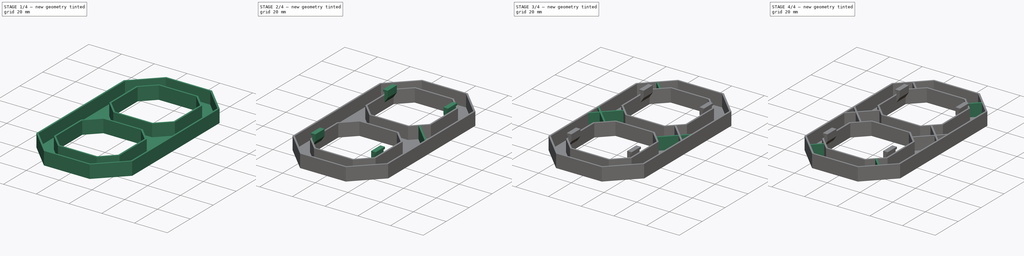
[diagram: build sequence overview — one tinted view per stage of 4, left to right]
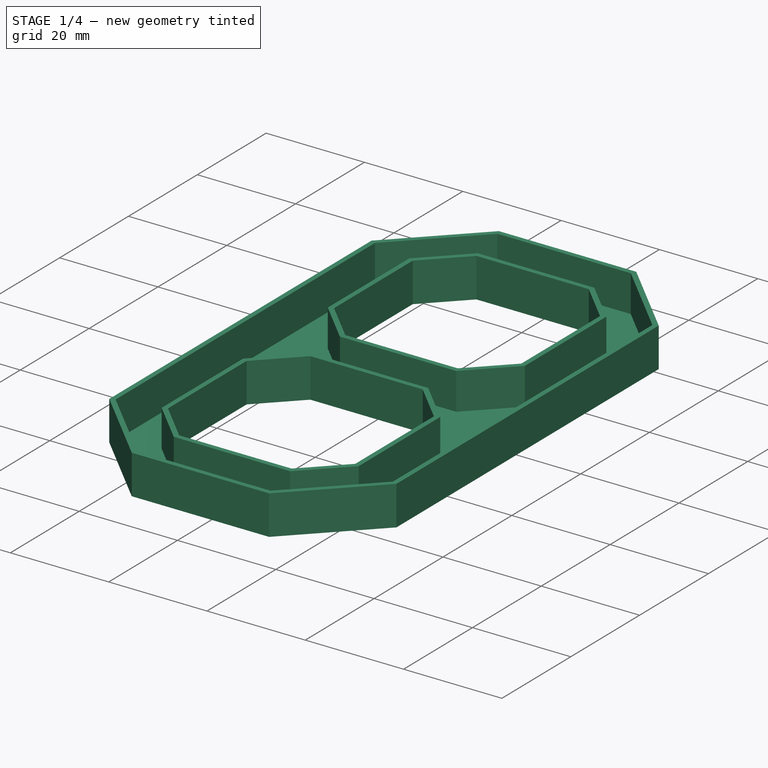
[diagram: stage 1 of 4 — iso view after this stage's code; geometry added in this stage tinted green]
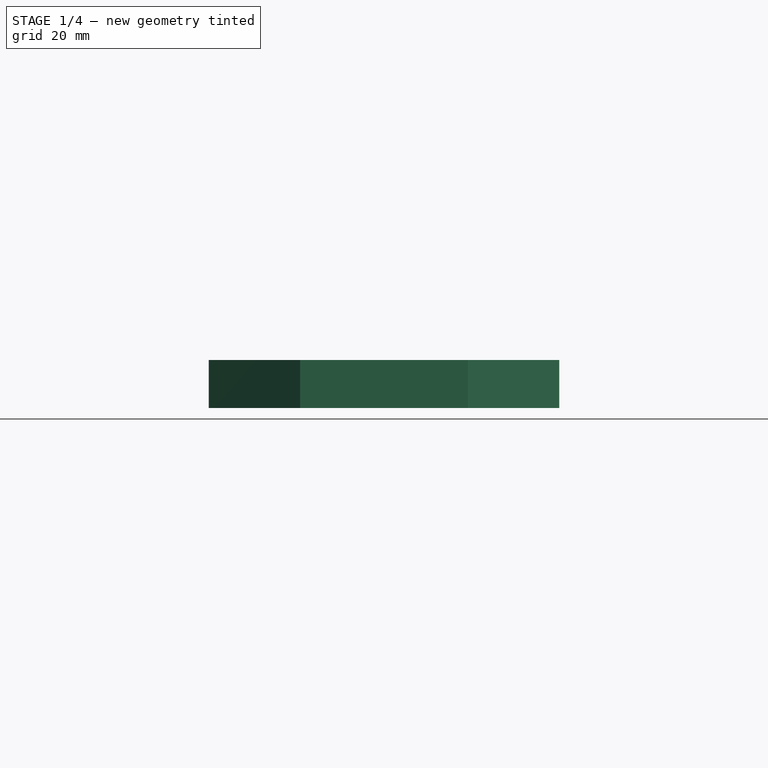
[diagram: stage 1 of 4 — front view after this stage's code; geometry added in this stage tinted green]
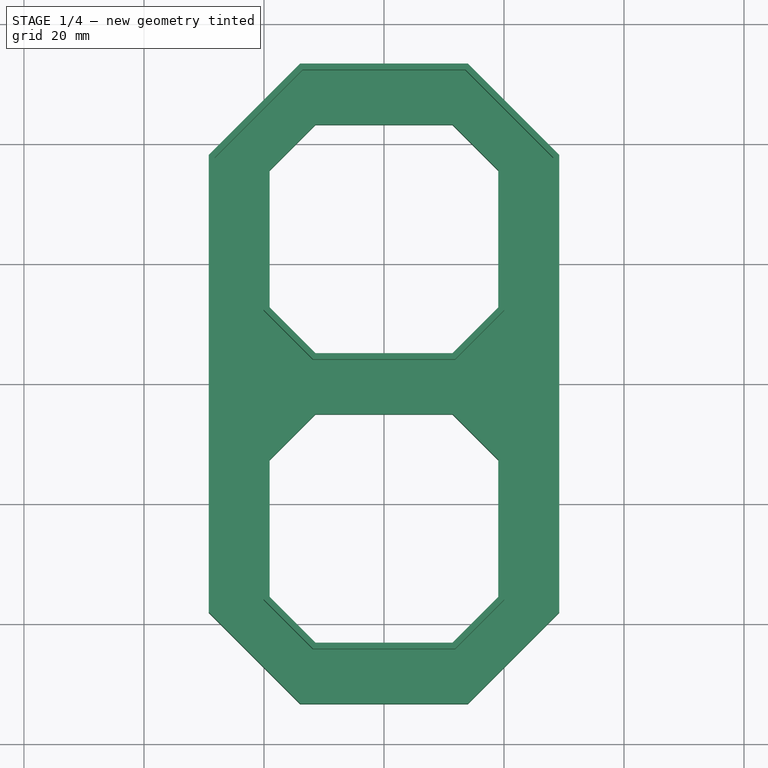
[diagram: stage 1 of 4 — top view after this stage's code; geometry added in this stage tinted green]
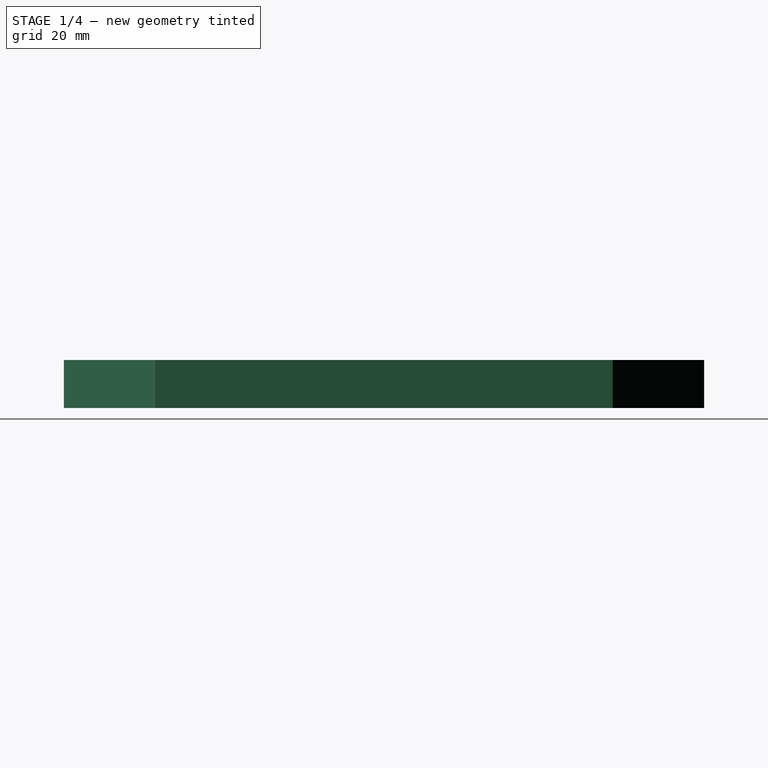
[diagram: stage 1 of 4 — right view after this stage's code; geometry added in this stage tinted green]
FCSTD DOCUMENT  (FreeCAD 0.21R33675 (Git))
Label: segment
License: All rights reserved
LicenseURL: http://en.wikipedia.org/wiki/All_rights_reserved
objects: Sketcher::SketchObject×11, PartDesign::Pad×11, PartDesign::Point×8, PartDesign::Thickness×1, PartDesign::Pocket×1, Spreadsheet::Sheet×1, PartDesign::Body×1
note: 46 computed .brp shape members not serialized (recipe doc carries the construction recipe); baked Part::Feature solids carry a one-line shape summary decoded from their .brp

FEATURE [Sketcher::SketchObject] Sketch  label="shape"
  FullyConstrained = true
  MapMode = 5
  Support = -> [XY_Plane]
  expr: Constraints[10] = <<vars>>.outer_corner
  expr: Constraints[11] = <<vars>>.outer_corner
  expr: Constraints[12] = <<vars>>.outer_corner
  expr: Constraints[13] = <<vars>>.edge_width
  expr: Constraints[20] = <<vars>>.edge_height
  expr: Constraints[34] = <<vars>>.edge_inner
  expr: Constraints[35] = <<vars>>.edge_inner
  expr: Constraints[36] = <<vars>>.edge_inner
  expr: Constraints[37] = <<vars>>.edge_inner
  expr: Constraints[40] = <<vars>>.inner_corner
  expr: Constraints[41] = <<vars>>.inner_corner
  expr: Constraints[42] = <<vars>>.inner_corner
  expr: Constraints[43] = <<vars>>.inner_corner
  expr: Constraints[44] = <<vars>>.width
  expr: Constraints[45] = <<vars>>.width
  expr: Constraints[4] = <<vars>>.edge_height
  expr: Constraints[58] = <<vars>>.edge_inner
  expr: Constraints[59] = <<vars>>.edge_inner
  expr: Constraints[5] = <<vars>>.edge_width
  expr: Constraints[60] = <<vars>>.edge_inner
  expr: Constraints[61] = <<vars>>.edge_inner
  expr: Constraints[64] = <<vars>>.inner_corner
  expr: Constraints[65] = <<vars>>.inner_corner
  expr: Constraints[66] = <<vars>>.inner_corner
  expr: Constraints[67] = <<vars>>.inner_corner
  expr: Constraints[68] = <<vars>>.width
  expr: Constraints[69] = <<vars>>.width
  expr: Constraints[70] = <<vars>>.offset_horizontal
  expr: Constraints[71] = <<vars>>.offset_vertical
  expr: Constraints[7] = <<vars>>.outer_corner
  sketch-geometry (24):
    g0: LineSegment StartX=-29.21 StartY=38.1003 StartZ=0 EndX=-29.21 EndY=-38.0997 EndZ=0
    g1: LineSegment StartX=-29.21 StartY=38.1003 StartZ=0 EndX=-13.9697 EndY=53.3405 EndZ=0
    g2: LineSegment StartX=-13.9697 StartY=53.3405 StartZ=0 EndX=13.9703 EndY=53.3405 EndZ=0
    g3: LineSegment StartX=13.9703 StartY=53.3405 StartZ=0 EndX=29.2105 EndY=38.1003 EndZ=0
    g4: LineSegment StartX=29.2105 StartY=38.1003 StartZ=0 EndX=29.2105 EndY=-38.0997 EndZ=0
    g5: LineSegment StartX=-13.9697 StartY=-53.34 StartZ=0 EndX=13.9703 EndY=-53.34 EndZ=0
    g6: LineSegment StartX=13.9703 StartY=-53.34 StartZ=0 EndX=29.2105 EndY=-38.0997 EndZ=0
    g7: LineSegment StartX=-29.21 StartY=-38.0997 StartZ=0 EndX=-13.9697 EndY=-53.34 EndZ=0
    g8: LineSegment StartX=-19.05 StartY=35.5608 StartZ=0 EndX=-19.05 EndY=12.7008 EndZ=0
    g9: LineSegment StartX=-19.05 StartY=35.5608 StartZ=0 EndX=-11.4302 EndY=43.1805 EndZ=0
    g10: LineSegment StartX=11.4298 StartY=43.1805 StartZ=0 EndX=19.0496 EndY=35.5608 EndZ=0
    g11: LineSegment StartX=19.0496 StartY=35.5608 StartZ=0 EndX=19.0496 EndY=12.7008 EndZ=0
    g12: LineSegment StartX=19.0496 StartY=12.7008 StartZ=0 EndX=11.4298 EndY=5.08098 EndZ=0
    g13: LineSegment StartX=11.4298 StartY=5.08098 StartZ=0 EndX=-11.4302 EndY=5.08098 EndZ=0
    g14: LineSegment StartX=-11.4302 StartY=5.08098 StartZ=0 EndX=-19.05 EndY=12.7008 EndZ=0
    g15: LineSegment StartX=-11.4302 StartY=43.1805 StartZ=0 EndX=11.4298 EndY=43.1805 EndZ=0
    g16: LineSegment StartX=-19.05 StartY=-35.5602 StartZ=0 EndX=-19.05 EndY=-12.7002 EndZ=0
    g17: LineSegment StartX=-19.05 StartY=-12.7002 StartZ=0 EndX=-11.4302 EndY=-5.08043 EndZ=0
    g18: LineSegment StartX=-11.4302 StartY=-5.08043 StartZ=0 EndX=11.4298 EndY=-5.08043 EndZ=0
    g19: LineSegment StartX=11.4298 StartY=-5.08043 StartZ=0 EndX=19.0496 EndY=-12.7002 EndZ=0
    g20: LineSegment StartX=19.0496 StartY=-12.7002 StartZ=0 EndX=19.0496 EndY=-35.5602 EndZ=0
    g21: LineSegment StartX=19.0496 StartY=-35.5602 StartZ=0 EndX=11.4298 EndY=-43.18 EndZ=0
    g22: LineSegment StartX=11.4298 StartY=-43.18 StartZ=0 EndX=-11.4302 EndY=-43.18 EndZ=0
    g23: LineSegment StartX=-11.4302 StartY=-43.18 StartZ=0 EndX=-19.05 EndY=-35.5602 EndZ=0
  constraints (72):
    c: Vertical(g0)
    c: Horizontal(g2)
    c: Coincident(g1,g0)
    c: Coincident(g1,g2)
    c: DistanceY(g0,g0) = 76.2
    c: DistanceX(g2,g2) = 27.94
    c: Angle(g1) = 0.785398
    c: Distance(g1) = 21.553
    c: Vertical(g4)
    c: Horizontal(g5)
    c: Distance(g3) = 21.553
    c: Distance(g7) = 21.553
    c: Distance(g6) = 21.553
    c: DistanceX(g5,g5) = 27.94
    c: Coincident(g0,g7)
    c: Coincident(g7,g5)
    c: Coincident(g5,g6)
    c: Coincident(g6,g4)
    c: Coincident(g4,g3)
    c: Coincident(g2,g3)
    c: DistanceY(g4,g4) = 76.2
    c: Angle(g3) = -0.785398
    c: Vertical(g8)
    c: Vertical(g11)
    c: Horizontal(g13)
    c: Horizontal(g15)
    c: Coincident(g8,g9)
    c: Coincident(g9,g15)
    c: Coincident(g15,g10)
    c: Coincident(g10,g11)
    c: Coincident(g11,g12)
    c: Coincident(g12,g13)
    c: Coincident(g13,g14)
    c: Coincident(g14,g8)
    c: DistanceY(g8,g8) = 22.86
    c: DistanceY(g11,g11) = 22.86
    c: DistanceX(g15,g15) = 22.86
    c: DistanceX(g13,g13) = 22.86
    c: Parallel(g1,g9)
    c: Parallel(g10,g3)
    c: Distance(g9) = 10.776
    c: Distance(g10) = 10.776
    c: Distance(g14) = 10.776
    c: Distance(g12) = 10.776
    c: DistanceX(g0,g8) = 10.16
    c: DistanceY(g9,g1) = 10.16
    c: Vertical(g16)
    c: Coincident(g16,g17)
    c: Coincident(g17,g18)
    c: Horizontal(g18)
    c: Coincident(g18,g19)
    c: Coincident(g19,g20)
    c: Vertical(g20)
    c: Coincident(g20,g21)
    c: Coincident(g21,g22)
    c: Horizontal(g22)
    c: Coincident(g22,g23)
    c: Coincident(g23,g16)
    c: DistanceY(g16,g16) = 22.86
    c: DistanceY(g20,g20) = 22.86
    c: DistanceX(g18,g18) = 22.86
    c: DistanceX(g22,g22) = 22.86
    c: Parallel(g23,g7)
    c: Parallel(g21,g6)
    c: Distance(g17) = 10.776
    c: Distance(g23) = 10.776
    c: Distance(g21) = 10.776
    c: Distance(g19) = 10.776
    c: DistanceX(g0,g16) = 10.16
    c: DistanceY(g5,g22) = 10.16
    c: DistanceX(g0,g-1) = 29.21
    c: DistanceY(g5,g-1) = 53.34
FEATURE [PartDesign::Pad] Pad
  Direction = (0,0,1)
  Length = 8
  Length2 = 10
  Profile = -> Sketch
  ReferenceAxis = -> Sketch [N_Axis]
  Type = 0
  expr: Length = <<vars>>.depth
FEATURE [PartDesign::Thickness] Thickness
  Base = -> Pad [Face26]
  BaseFeature = -> Pad
  Intersection = false
  Join = 1
  Mode = 0
  Reversed = true
  SupportTransform = false
  Value = 1
FEATURE [PartDesign::Pocket] Pocket
  BaseFeature = -> Thickness
  Direction = (0,0,-1)
  Length = 0.5
  Length2 = 5
  Profile = -> Thickness [Face35]
  Refine = true
  Type = 0
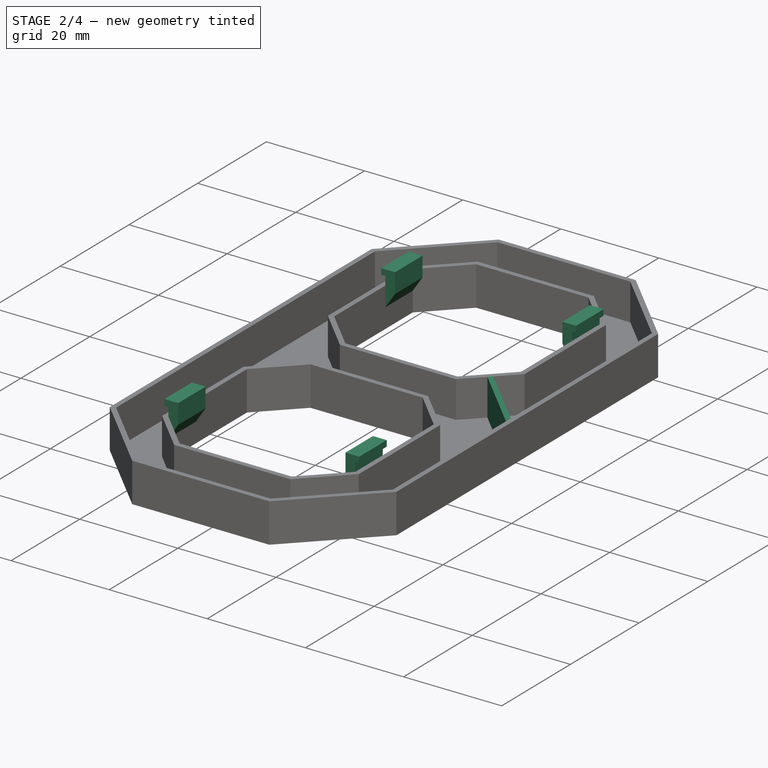
[diagram: stage 2 of 4 — iso view after this stage's code; geometry added in this stage tinted green]
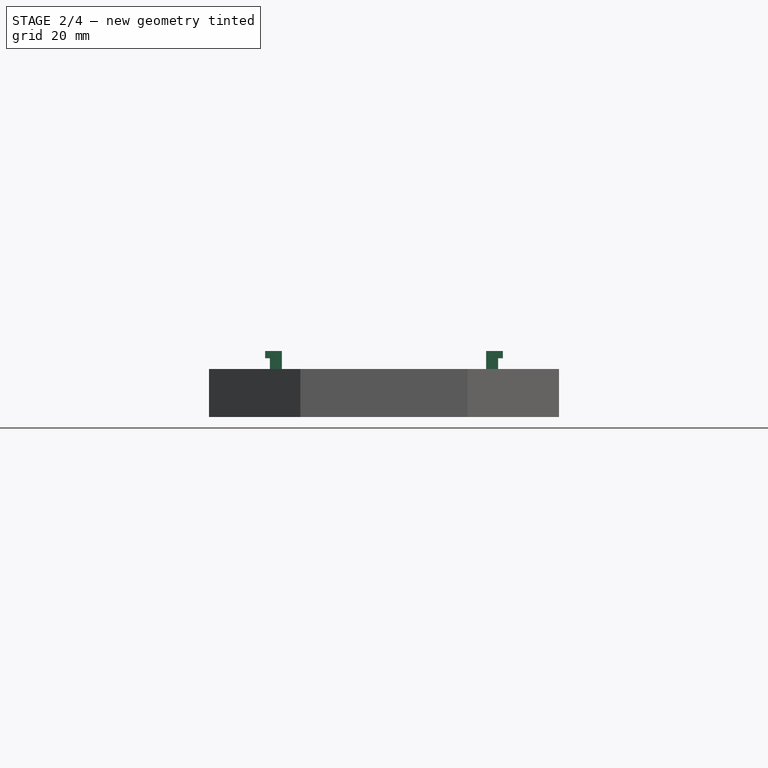
[diagram: stage 2 of 4 — front view after this stage's code; geometry added in this stage tinted green]
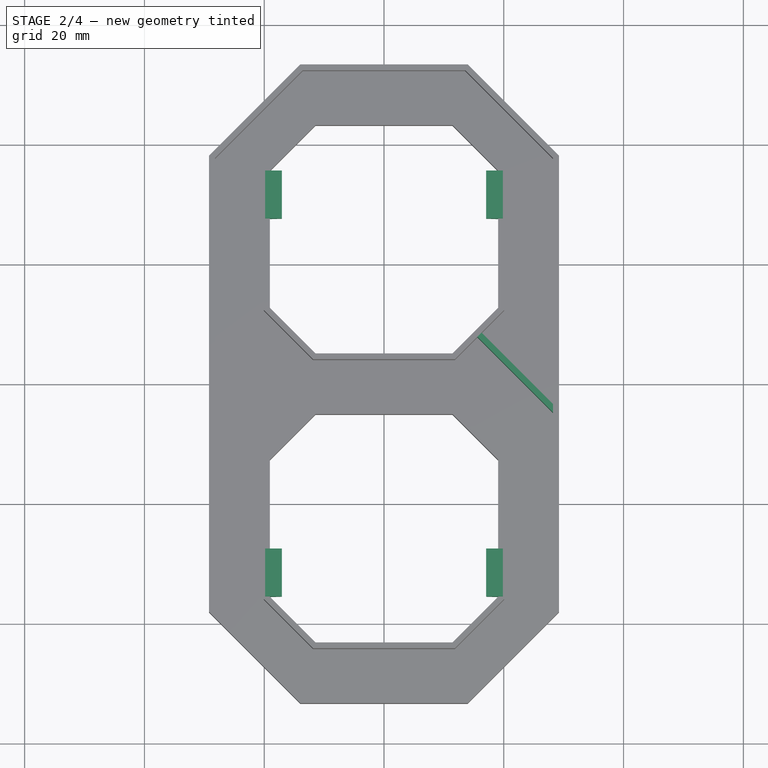
[diagram: stage 2 of 4 — top view after this stage's code; geometry added in this stage tinted green]
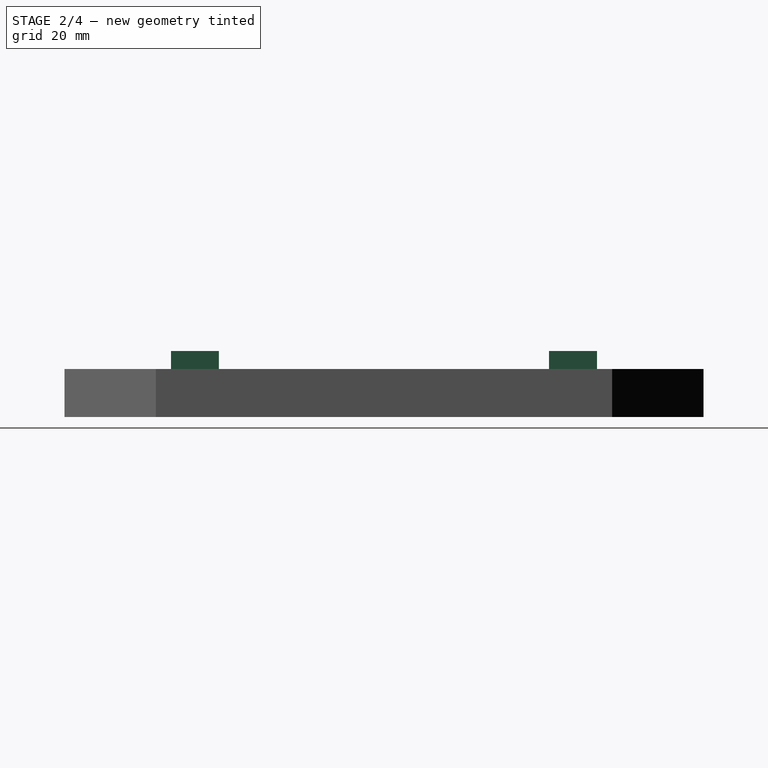
[diagram: stage 2 of 4 — right view after this stage's code; geometry added in this stage tinted green]
FEATURE [Spreadsheet::Sheet] Spreadsheet  label="vars"
  cells = A1='edge_width; B1(edge_width)=27.94; A2='edge_height; B2(edge_height)=76.2; A3='edge_inner; B3(edge_inner)=22.86; A4='outer_corner; B4(outer_corner)=21.553; A5='inner_corner; B5(inner_corner)=10.776; A6='offset_horizontal; B6(offset_horizontal)=29.21; A7='offset_vertical; B7(offset_vertical)=53.34; A8='width; B8(width)=10.16; A9='depth; B9(depth)=8
FEATURE [Sketcher::SketchObject] Sketch001  label="hooks_1_sketch"
  AttachmentOffset = pos=(0,0,35.56) rot=(0,0,1;0rad)
  FullyConstrained = true
  MapMode = 5
  Placement = pos=(0,-35.56,-7.9e-15) rot=(1,0,0;1.5708rad)
  Support = -> [XZ_Plane]
  expr: .AttachmentOffset.Base.z = (<<vars>>.offset_vertical - <<vars>>.width / 2 + <<vars>>.edge_inner) / 2
  expr: Constraints[28] = <<vars>>.offset_horizontal - <<vars>>.width
  expr: Constraints[2] = <<vars>>.depth - 4
  expr: Constraints[30] = <<vars>>.depth - 4
  expr: Constraints[3] = <<vars>>.offset_horizontal - <<vars>>.width
  sketch-geometry (12):
    g0: LineSegment StartX=-19.05 StartY=4 StartZ=0 EndX=-19.05 EndY=9.8 EndZ=0
    g1: LineSegment StartX=-19.05 StartY=4 StartZ=0 EndX=-17.05 EndY=7 EndZ=0
    g2: LineSegment StartX=-17.05 StartY=7 StartZ=0 EndX=-17.05 EndY=11 EndZ=0
    g3: LineSegment StartX=-17.05 StartY=11 StartZ=0 EndX=-19.85 EndY=11 EndZ=0
    g4: LineSegment StartX=-19.85 StartY=11 StartZ=0 EndX=-19.85 EndY=9.8 EndZ=0
    g5: LineSegment StartX=-19.85 StartY=9.8 StartZ=0 EndX=-19.05 EndY=9.8 EndZ=0
    g6: LineSegment StartX=19.05 StartY=4 StartZ=0 EndX=19.05 EndY=9.8 EndZ=0
    g7: LineSegment StartX=19.05 StartY=9.8 StartZ=0 EndX=19.85 EndY=9.8 EndZ=0
    g8: LineSegment StartX=19.85 StartY=9.8 StartZ=0 EndX=19.85 EndY=11 EndZ=0
    g9: LineSegment StartX=19.85 StartY=11 StartZ=0 EndX=17.05 EndY=11 EndZ=0
    g10: LineSegment StartX=17.05 StartY=11 StartZ=0 EndX=17.05 EndY=7 EndZ=0
    g11: LineSegment StartX=17.05 StartY=7 StartZ=0 EndX=19.05 EndY=4 EndZ=0
  constraints (36):
    c: Vertical(g0)
    c: DistanceY(g0,g0) = 5.8
    c: DistanceY(g-1,g0) = 4
    c: DistanceX(g0,g-1) = 19.05
    c: Coincident(g1,g0)
    c: Coincident(g2,g1)
    c: Vertical(g2)
    c: Coincident(g3,g2)
    c: Horizontal(g3)
    c: Coincident(g4,g3)
    c: Coincident(g5,g4)
    c: Coincident(g5,g0)
    c: Horizontal(g5)
    c: DistanceX(g0,g1) = 2
    c: DistanceY(g0,g1) = 3
    c: DistanceY(g0,g2) = 1.2
    c: DistanceX(g3,g3) = 2.8
    c: DistanceX(g5,g5) = 0.8
    c: Vertical(g6)
    c: Coincident(g6,g7)
    c: Horizontal(g7)
    c: Coincident(g7,g8)
    c: Coincident(g8,g9)
    c: Horizontal(g9)
    c: Coincident(g9,g10)
    c: Vertical(g10)
    c: Coincident(g10,g11)
    c: Coincident(g11,g6)
    c: DistanceX(g-1,g6) = 19.05
    c: DistanceX(g10,g6) = 2
    c: DistanceY(g-1,g6) = 4
    c: DistanceY(g6,g6) = 5.8
    c: DistanceY(g6,g9) = 1.2
    c: DistanceY(g6,g10) = 3
    c: DistanceX(g9,g8) = 2.8
    c: DistanceX(g6,g7) = 0.8
FEATURE [PartDesign::Pad] Pad001  label="hooks_1"
  BaseFeature = -> Pocket
  Direction = (0,-1,-2e-16)
  Length = 8
  Length2 = 10
  Profile = -> Sketch001
  ReferenceAxis = -> Sketch001 [N_Axis]
  Reversed = true
  Type = 0
FEATURE [Sketcher::SketchObject] Sketch002  label="hooks_2_sketch"
  AttachmentOffset = pos=(0,0,-35.56) rot=(0,0,1;0rad)
  FullyConstrained = true
  MapMode = 5
  Placement = pos=(0,35.56,7.9e-15) rot=(1,0,0;1.5708rad)
  Support = -> [XZ_Plane]
  expr: .AttachmentOffset.Base.z = -(<<vars>>.offset_vertical - <<vars>>.width / 2 + <<vars>>.edge_inner) / 2
  expr: Constraints[28] = <<vars>>.offset_horizontal - <<vars>>.width
  expr: Constraints[2] = <<vars>>.depth - 4
  expr: Constraints[30] = <<vars>>.depth - 4
  expr: Constraints[3] = <<vars>>.offset_horizontal - <<vars>>.width
  sketch-geometry (12):
    g0: LineSegment StartX=-19.05 StartY=4 StartZ=0 EndX=-19.05 EndY=9.8 EndZ=0
    g1: LineSegment StartX=-19.05 StartY=4 StartZ=0 EndX=-17.05 EndY=7 EndZ=0
    g2: LineSegment StartX=-17.05 StartY=7 StartZ=0 EndX=-17.05 EndY=11 EndZ=0
    g3: LineSegment StartX=-17.05 StartY=11 StartZ=0 EndX=-19.85 EndY=11 EndZ=0
    g4: LineSegment StartX=-19.85 StartY=11 StartZ=0 EndX=-19.85 EndY=9.8 EndZ=0
    g5: LineSegment StartX=-19.85 StartY=9.8 StartZ=0 EndX=-19.05 EndY=9.8 EndZ=0
    g6: LineSegment StartX=19.05 StartY=4 StartZ=0 EndX=19.05 EndY=9.8 EndZ=0
    g7: LineSegment StartX=19.05 StartY=9.8 StartZ=0 EndX=19.85 EndY=9.8 EndZ=0
    g8: LineSegment StartX=19.85 StartY=9.8 StartZ=0 EndX=19.85 EndY=11 EndZ=0
    g9: LineSegment StartX=19.85 StartY=11 StartZ=0 EndX=17.05 EndY=11 EndZ=0
    g10: LineSegment StartX=17.05 StartY=11 StartZ=0 EndX=17.05 EndY=7 EndZ=0
    g11: LineSegment StartX=17.05 StartY=7 StartZ=0 EndX=19.05 EndY=4 EndZ=0
  constraints (36):
    c: Vertical(g0)
    c: DistanceY(g0,g0) = 5.8
    c: DistanceY(g-1,g0) = 4
    c: DistanceX(g0,g-1) = 19.05
    c: Coincident(g1,g0)
    c: Coincident(g2,g1)
    c: Vertical(g2)
    c: Coincident(g3,g2)
    c: Horizontal(g3)
    c: Coincident(g4,g3)
    c: Coincident(g5,g4)
    c: Coincident(g5,g0)
    c: Horizontal(g5)
    c: DistanceX(g0,g1) = 2
    c: DistanceY(g0,g1) = 3
    c: DistanceY(g0,g2) = 1.2
    c: DistanceX(g3,g3) = 2.8
    c: DistanceX(g5,g5) = 0.8
    c: Vertical(g6)
    c: Coincident(g6,g7)
    c: Horizontal(g7)
    c: Coincident(g7,g8)
    c: Coincident(g8,g9)
    c: Horizontal(g9)
    c: Coincident(g9,g10)
    c: Vertical(g10)
    c: Coincident(g10,g11)
    c: Coincident(g11,g6)
    c: DistanceX(g-1,g6) = 19.05
    c: DistanceX(g10,g6) = 2
    c: DistanceY(g-1,g6) = 4
    c: DistanceY(g6,g6) = 5.8
    c: DistanceY(g6,g9) = 1.2
    c: DistanceY(g6,g10) = 3
    c: DistanceX(g9,g8) = 2.8
    c: DistanceX(g6,g7) = 0.8
FEATURE [PartDesign::Pad] Pad002  label="hooks_2"
  BaseFeature = -> Pad001
  Direction = (0,-1,-2e-16)
  Length = 8
  Length2 = 10
  Profile = -> Sketch002
  ReferenceAxis = -> Sketch002 [N_Axis]
  Type = 0
FEATURE [PartDesign::Point] DatumPoint
  AttacherType = Attacher::AttachEnginePoint
  MapMode = 37
  Placement = pos=(15.9468,8.18376,4.25) rot=(0,0,1;0rad)
  Support = -> [Pad002]
FEATURE [PartDesign::Point] DatumPoint001
  AttacherType = Attacher::AttachEnginePoint
  MapMode = 37
  Placement = pos=(15.9468,-8.18322,4.25) rot=(0,0,1;0rad)
  Support = -> [Pad002]
FEATURE [PartDesign::Point] DatumPoint002
  AttacherType = Attacher::AttachEnginePoint
  MapMode = 37
  Placement = pos=(15.9468,-40.0772,4.25) rot=(0,0,1;0rad)
  Support = -> [Pad002]
FEATURE [PartDesign::Point] DatumPoint003
  AttacherType = Attacher::AttachEnginePoint
  MapMode = 37
  Placement = pos=(-15.9472,-40.0772,4.25) rot=(0,0,1;0rad)
  Support = -> [Pad002]
FEATURE [PartDesign::Point] DatumPoint004
  AttacherType = Attacher::AttachEnginePoint
  MapMode = 37
  Placement = pos=(-15.9472,-8.18322,4.25) rot=(0,0,1;0rad)
  Support = -> [Pad002]
FEATURE [PartDesign::Point] DatumPoint005
  AttacherType = Attacher::AttachEnginePoint
  MapMode = 37
  Placement = pos=(-15.9472,8.18376,4.25) rot=(0,0,1;0rad)
  Support = -> [Pad002]
FEATURE [PartDesign::Point] DatumPoint006
  AttacherType = Attacher::AttachEnginePoint
  MapMode = 37
  Placement = pos=(-15.9472,40.0778,4.25) rot=(0,0,1;0rad)
  Support = -> [Pad002]
FEATURE [PartDesign::Point] DatumPoint007
  AttacherType = Attacher::AttachEnginePoint
  MapMode = 37
  Placement = pos=(15.9468,40.0778,4.25) rot=(0,0,1;0rad)
  Support = -> [Pad002]
FEATURE [Sketcher::SketchObject] Sketch003
  ExternalGeometry = -> [DatumPoint]
  FullyConstrained = true
  MapMode = 5
  Placement = pos=(3.88151,-3.88151,2e-16) rot=(0.862856,0.357407,0.357407;1.71777rad)
  Support = -> [Pad002]
  sketch-geometry (5):
    g0: LineSegment StartX=16.5629 StartY=8 StartZ=0 EndX=16.5629 EndY=0.5 EndZ=0
    g1: LineSegment StartX=16.5629 StartY=0.5 StartZ=0 EndX=17.5629 EndY=0.5 EndZ=0
    g2: LineSegment StartX=17.5629 StartY=0.5 StartZ=0 EndX=17.5629 EndY=8 EndZ=0
    g3: LineSegment StartX=17.5629 StartY=8 StartZ=0 EndX=16.5629 EndY=8 EndZ=0
    g4: GeomPoint X=17.0629 Y=4.25 Z=0
  constraints (12):
    c: Coincident(g0,g1)
    c: Coincident(g1,g2)
    c: Coincident(g2,g3)
    c: Coincident(g3,g0)
    c: Horizontal(g1)
    c: Horizontal(g3)
    c: Vertical(g0)
    c: Vertical(g2)
    c: Symmetric(g1,g0,g4)
    c: Coincident(g4,g-3)
    c: DistanceX(g4,g1) = 0.5
    c: DistanceY(g1,g4) = 3.75
FEATURE [PartDesign::Pad] Pad003
  BaseFeature = -> Pad002
  Direction = (0.707107,-0.707107,0)
  Length = 18
  Length2 = 10
  Profile = -> Sketch003
  ReferenceAxis = -> Sketch003 [N_Axis]
  Refine = true
  Type = 0
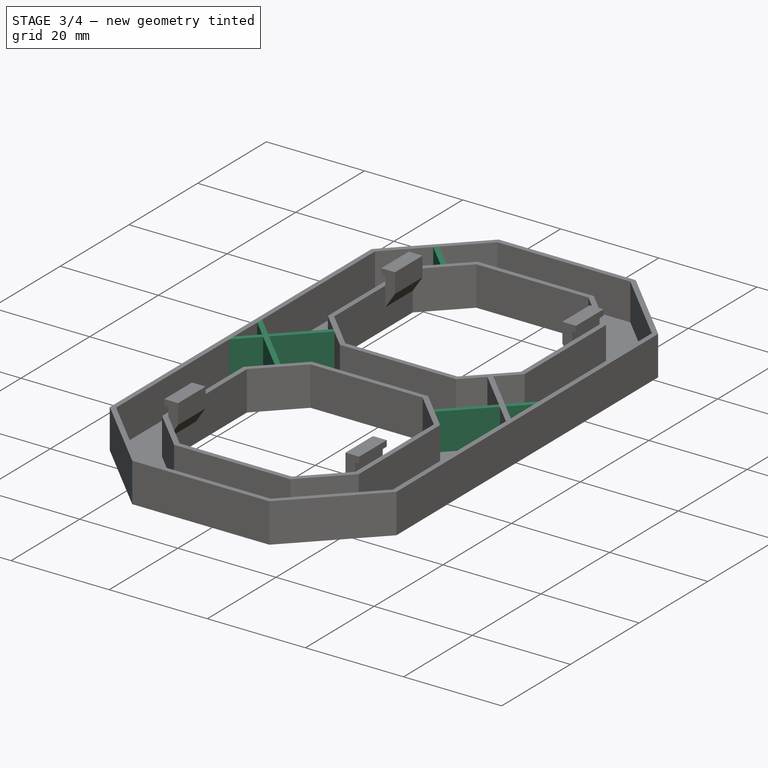
[diagram: stage 3 of 4 — iso view after this stage's code; geometry added in this stage tinted green]
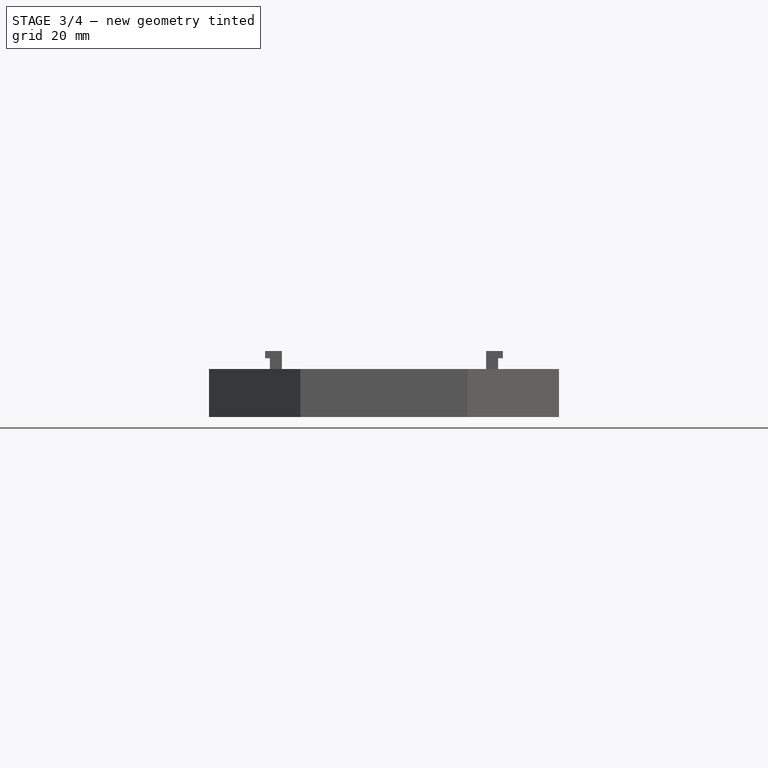
[diagram: stage 3 of 4 — front view after this stage's code; geometry added in this stage tinted green]
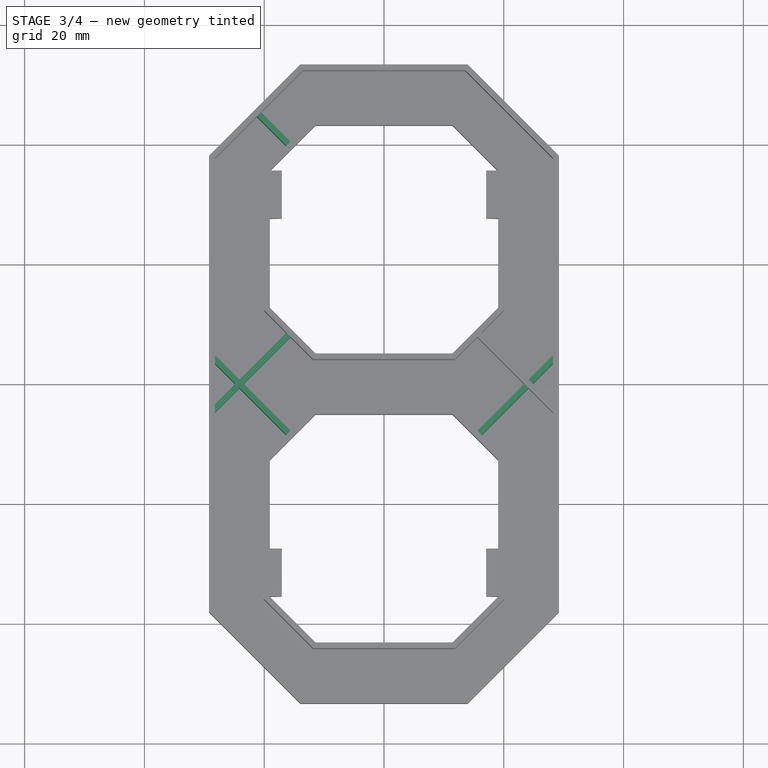
[diagram: stage 3 of 4 — top view after this stage's code; geometry added in this stage tinted green]
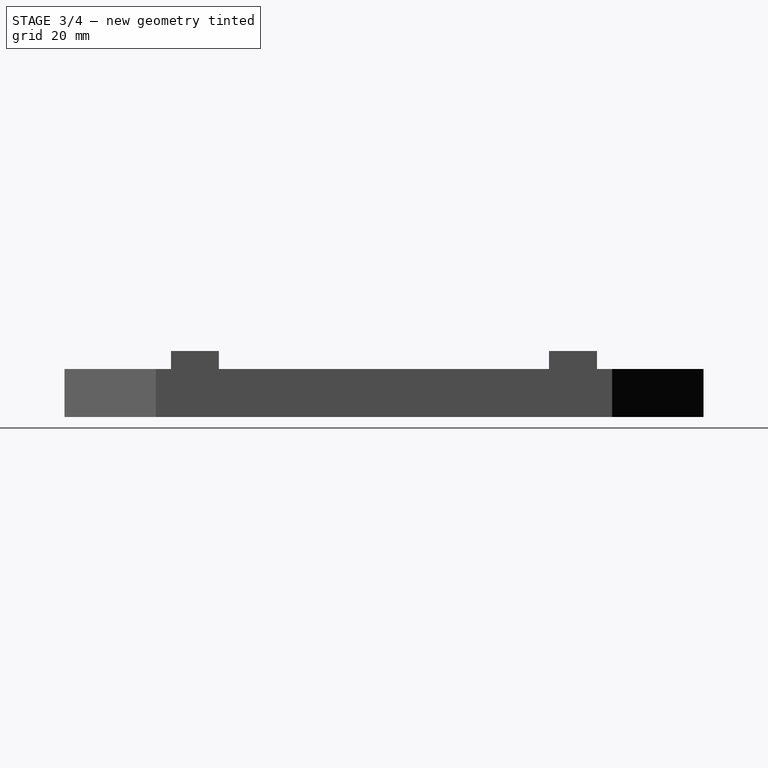
[diagram: stage 3 of 4 — right view after this stage's code; geometry added in this stage tinted green]
FEATURE [Sketcher::SketchObject] Sketch004
  ExternalGeometry = -> [DatumPoint001]
  FullyConstrained = true
  MapMode = 5
  Placement = pos=(3.88178,3.88178,2e-16) rot=(0.281085,0.678598,0.678598;2.59356rad)
  Support = -> [Pad003]
  sketch-geometry (5):
    g0: LineSegment StartX=-17.5625 StartY=8 StartZ=0 EndX=-17.5625 EndY=0.5 EndZ=0
    g1: LineSegment StartX=-17.5625 StartY=0.5 StartZ=0 EndX=-16.5625 EndY=0.5 EndZ=0
    g2: LineSegment StartX=-16.5625 StartY=0.5 StartZ=0 EndX=-16.5625 EndY=8 EndZ=0
    g3: LineSegment StartX=-16.5625 StartY=8 StartZ=0 EndX=-17.5625 EndY=8 EndZ=0
    g4: GeomPoint X=-17.0625 Y=4.25 Z=0
  constraints (12):
    c: Coincident(g0,g1)
    c: Coincident(g1,g2)
    c: Coincident(g2,g3)
    c: Coincident(g3,g0)
    c: Horizontal(g1)
    c: Horizontal(g3)
    c: Vertical(g0)
    c: Vertical(g2)
    c: Symmetric(g1,g0,g4)
    c: Coincident(g4,g-3)
    c: DistanceX(g4,g1) = 0.5
    c: DistanceY(g1,g4) = 3.75
FEATURE [PartDesign::Pad] Pad004
  BaseFeature = -> Pad003
  Direction = (0.707107,0.707107,0)
  Length = 18
  Length2 = 10
  Profile = -> Sketch004
  ReferenceAxis = -> Sketch004 [N_Axis]
  Refine = true
  Type = 0
FEATURE [Sketcher::SketchObject] Sketch005
  ExternalGeometry = -> [DatumPoint005]
  FullyConstrained = true
  MapMode = 5
  Placement = pos=(-3.88173,-3.88173,1e-16) rot=(0.862856,-0.357407,-0.357407;1.71777rad)
  Support = -> [Pad004]
  sketch-geometry (5):
    g0: LineSegment StartX=-17.5632 StartY=8 StartZ=0 EndX=-17.5632 EndY=0.5 EndZ=0
    g1: LineSegment StartX=-17.5632 StartY=0.5 StartZ=0 EndX=-16.5632 EndY=0.5 EndZ=0
    g2: LineSegment StartX=-16.5632 StartY=0.5 StartZ=0 EndX=-16.5632 EndY=8 EndZ=0
    g3: LineSegment StartX=-16.5632 StartY=8 StartZ=0 EndX=-17.5632 EndY=8 EndZ=0
    g4: GeomPoint X=-17.0632 Y=4.25 Z=0
  constraints (12):
    c: Coincident(g0,g1)
    c: Coincident(g1,g2)
    c: Coincident(g2,g3)
    c: Coincident(g3,g0)
    c: Horizontal(g1)
    c: Horizontal(g3)
    c: Vertical(g0)
    c: Vertical(g2)
    c: Symmetric(g1,g0,g4)
    c: Coincident(g4,g-3)
    c: DistanceX(g4,g1) = 0.5
    c: DistanceY(g1,g4) = 3.75
FEATURE [PartDesign::Pad] Pad005
  BaseFeature = -> Pad004
  Direction = (-0.707107,-0.707107,0)
  Length = 18
  Length2 = 10
  Profile = -> Sketch005
  ReferenceAxis = -> Sketch005 [N_Axis]
  Refine = true
  Type = 0
FEATURE [Sketcher::SketchObject] Sketch006
  ExternalGeometry = -> [DatumPoint004]
  FullyConstrained = true
  MapMode = 5
  Placement = pos=(-3.882,3.882,1e-16) rot=(-0.281085,0.678598,0.678598;3.68962rad)
  Support = -> [Pad005]
  sketch-geometry (5):
    g0: LineSegment StartX=16.5628 StartY=8 StartZ=0 EndX=16.5628 EndY=0.5 EndZ=0
    g1: LineSegment StartX=16.5628 StartY=0.5 StartZ=0 EndX=17.5628 EndY=0.5 EndZ=0
    g2: LineSegment StartX=17.5628 StartY=0.5 StartZ=0 EndX=17.5628 EndY=8 EndZ=0
    g3: LineSegment StartX=17.5628 StartY=8 StartZ=0 EndX=16.5628 EndY=8 EndZ=0
    g4: GeomPoint X=17.0628 Y=4.25 Z=0
  constraints (12):
    c: Coincident(g0,g1)
    c: Coincident(g1,g2)
    c: Coincident(g2,g3)
    c: Coincident(g3,g0)
    c: Horizontal(g1)
    c: Horizontal(g3)
    c: Vertical(g0)
    c: Vertical(g2)
    c: Symmetric(g1,g0,g4)
    c: Coincident(g4,g-3)
    c: DistanceX(g4,g1) = 0.5
    c: DistanceY(g1,g4) = 3.75
FEATURE [PartDesign::Pad] Pad006
  BaseFeature = -> Pad005
  Direction = (-0.707107,0.707107,0)
  Length = 18
  Length2 = 10
  Profile = -> Sketch006
  ReferenceAxis = -> Sketch006 [N_Axis]
  Refine = true
  Type = 0
FEATURE [Sketcher::SketchObject] Sketch007
  ExternalGeometry = -> [DatumPoint006]
  FullyConstrained = true
  MapMode = 5
  Placement = pos=(-28.0125,28.0125,-5.5e-15) rot=(-0.281085,0.678598,0.678598;3.68962rad)
  Support = -> [Pad006]
  sketch-geometry (5):
    g0: LineSegment StartX=-17.5629 StartY=8 StartZ=0 EndX=-17.5629 EndY=0.5 EndZ=0
    g1: LineSegment StartX=-17.5629 StartY=0.5 StartZ=0 EndX=-16.5629 EndY=0.5 EndZ=0
    g2: LineSegment StartX=-16.5629 StartY=0.5 StartZ=0 EndX=-16.5629 EndY=8 EndZ=0
    g3: LineSegment StartX=-16.5629 StartY=8 StartZ=0 EndX=-17.5629 EndY=8 EndZ=0
    g4: GeomPoint X=-17.0629 Y=4.25 Z=0
  constraints (12):
    c: Coincident(g0,g1)
    c: Coincident(g1,g2)
    c: Coincident(g2,g3)
    c: Coincident(g3,g0)
    c: Horizontal(g1)
    c: Horizontal(g3)
    c: Vertical(g0)
    c: Vertical(g2)
    c: Symmetric(g1,g0,g4)
    c: Coincident(g4,g-3)
    c: DistanceX(g4,g1) = 0.5
    c: DistanceY(g1,g4) = 3.75
FEATURE [PartDesign::Pad] Pad007
  BaseFeature = -> Pad006
  Direction = (-0.707107,0.707107,-1e-16)
  Length = 7
  Length2 = 10
  Profile = -> Sketch007
  ReferenceAxis = -> Sketch007 [N_Axis]
  Refine = true
  Type = 0
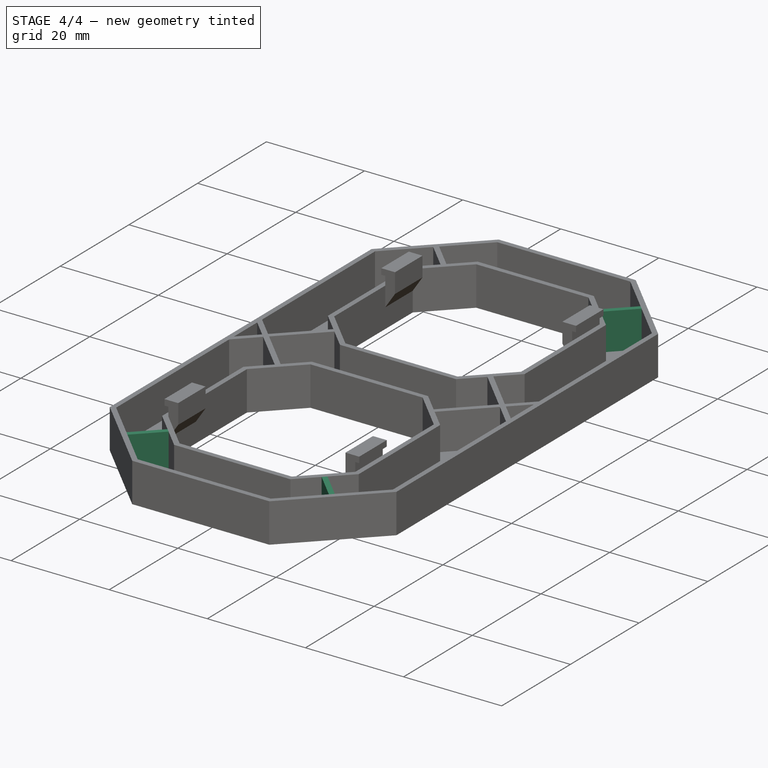
[diagram: stage 4 of 4 — iso view after this stage's code; geometry added in this stage tinted green]
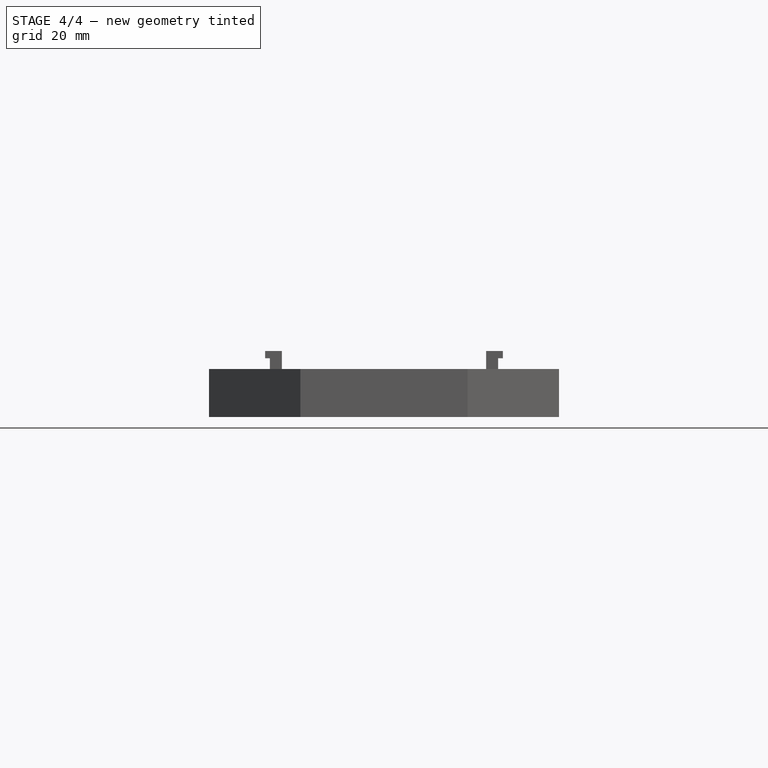
[diagram: stage 4 of 4 — front view after this stage's code; geometry added in this stage tinted green]
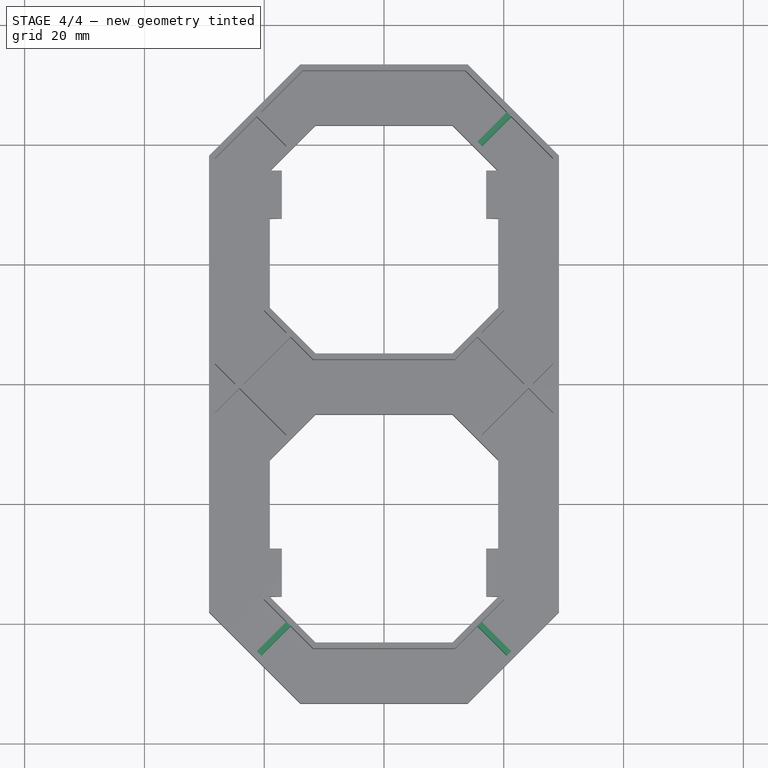
[diagram: stage 4 of 4 — top view after this stage's code; geometry added in this stage tinted green]
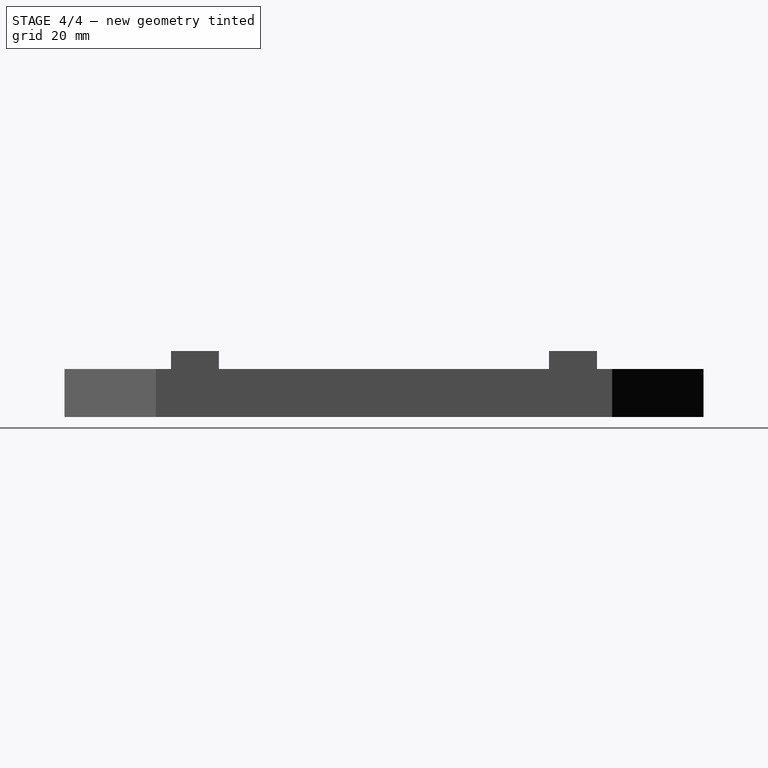
[diagram: stage 4 of 4 — right view after this stage's code; geometry added in this stage tinted green]
FEATURE [Sketcher::SketchObject] Sketch008
  ExternalGeometry = -> [DatumPoint003]
  FullyConstrained = true
  MapMode = 5
  Placement = pos=(-28.0122,-28.0122,2e-15) rot=(0.862856,-0.357407,-0.357407;1.71777rad)
  Support = -> [Pad007]
  sketch-geometry (5):
    g0: LineSegment StartX=16.5625 StartY=8 StartZ=0 EndX=16.5625 EndY=0.5 EndZ=0
    g1: LineSegment StartX=16.5625 StartY=0.5 StartZ=0 EndX=17.5625 EndY=0.5 EndZ=0
    g2: LineSegment StartX=17.5625 StartY=0.5 StartZ=0 EndX=17.5625 EndY=8 EndZ=0
    g3: LineSegment StartX=17.5625 StartY=8 StartZ=0 EndX=16.5625 EndY=8 EndZ=0
    g4: GeomPoint X=17.0625 Y=4.25 Z=0
  constraints (12):
    c: Coincident(g0,g1)
    c: Coincident(g1,g2)
    c: Coincident(g2,g3)
    c: Coincident(g3,g0)
    c: Horizontal(g1)
    c: Horizontal(g3)
    c: Vertical(g0)
    c: Vertical(g2)
    c: Symmetric(g1,g0,g4)
    c: Coincident(g4,g-3)
    c: DistanceX(g4,g1) = 0.5
    c: DistanceY(g1,g4) = 3.75
FEATURE [PartDesign::Pad] Pad008
  BaseFeature = -> Pad007
  Direction = (-0.707107,-0.707107,0)
  Length = 7
  Length2 = 10
  Profile = -> Sketch008
  ReferenceAxis = -> Sketch008 [N_Axis]
  Refine = true
  Type = 0
FEATURE [Sketcher::SketchObject] Sketch009
  ExternalGeometry = -> [DatumPoint002]
  FullyConstrained = true
  MapMode = 5
  Placement = pos=(28.012,-28.012,7.5e-15) rot=(0.862856,0.357407,0.357407;1.71777rad)
  Support = -> [Pad008]
  sketch-geometry (5):
    g0: LineSegment StartX=-17.5628 StartY=8 StartZ=0 EndX=-17.5628 EndY=0.5 EndZ=0
    g1: LineSegment StartX=-17.5628 StartY=0.5 StartZ=0 EndX=-16.5628 EndY=0.5 EndZ=0
    g2: LineSegment StartX=-16.5628 StartY=0.5 StartZ=0 EndX=-16.5628 EndY=8 EndZ=0
    g3: LineSegment StartX=-16.5628 StartY=8 StartZ=0 EndX=-17.5628 EndY=8 EndZ=0
    g4: GeomPoint X=-17.0628 Y=4.25 Z=0
  constraints (12):
    c: Coincident(g0,g1)
    c: Coincident(g1,g2)
    c: Coincident(g2,g3)
    c: Coincident(g3,g0)
    c: Horizontal(g1)
    c: Horizontal(g3)
    c: Vertical(g0)
    c: Vertical(g2)
    c: Symmetric(g1,g0,g4)
    c: Coincident(g4,g-3)
    c: DistanceX(g4,g1) = 0.5
    c: DistanceY(g1,g4) = 3.75
FEATURE [PartDesign::Pad] Pad009
  BaseFeature = -> Pad008
  Direction = (0.707107,-0.707107,4e-16)
  Length = 7
  Length2 = 10
  Profile = -> Sketch009
  ReferenceAxis = -> Sketch009 [N_Axis]
  Refine = true
  Type = 0
FEATURE [Sketcher::SketchObject] Sketch010
  ExternalGeometry = -> [DatumPoint007]
  FullyConstrained = true
  MapMode = 5
  Placement = pos=(28.0123,28.0123,-1.6e-15) rot=(0.281085,0.678598,0.678598;2.59356rad)
  Support = -> [Pad009]
  sketch-geometry (5):
    g0: LineSegment StartX=16.5632 StartY=8 StartZ=0 EndX=16.5632 EndY=0.5 EndZ=0
    g1: LineSegment StartX=16.5632 StartY=0.5 StartZ=0 EndX=17.5632 EndY=0.5 EndZ=0
    g2: LineSegment StartX=17.5632 StartY=0.5 StartZ=0 EndX=17.5632 EndY=8 EndZ=0
    g3: LineSegment StartX=17.5632 StartY=8 StartZ=0 EndX=16.5632 EndY=8 EndZ=0
    g4: GeomPoint X=17.0632 Y=4.25 Z=0
  constraints (12):
    c: Coincident(g0,g1)
    c: Coincident(g1,g2)
    c: Coincident(g2,g3)
    c: Coincident(g3,g0)
    c: Horizontal(g1)
    c: Horizontal(g3)
    c: Vertical(g0)
    c: Vertical(g2)
    c: Symmetric(g1,g0,g4)
    c: Coincident(g4,g-3)
    c: DistanceX(g4,g1) = 0.5
    c: DistanceY(g1,g4) = 3.75
FEATURE [PartDesign::Pad] Pad010
  BaseFeature = -> Pad009
  Direction = (0.707107,0.707107,1e-16)
  Length = 7
  Length2 = 10
  Profile = -> Sketch010
  ReferenceAxis = -> Sketch010 [N_Axis]
  Refine = true
  Type = 0
FEATURE [PartDesign::Body] Body
  Group = -> [Sketch,Pad,Thickness,Pocket,Sketch001,Pad001,Sketch002,Pad002,DatumPoint,DatumPoint001,DatumPoint002,DatumPoint003,DatumPoint004,DatumPoint005,DatumPoint006,DatumPoint007,Sketch003,Pad003,Sketch004,Pad004,Sketch005,Pad005,Sketch006,Pad006,Sketch007,Pad007,Sketch008,Pad008,Sketch009,Pad009,Sketch010,Pad010]
  Origin = -> Origin
  Tip = -> Pad010
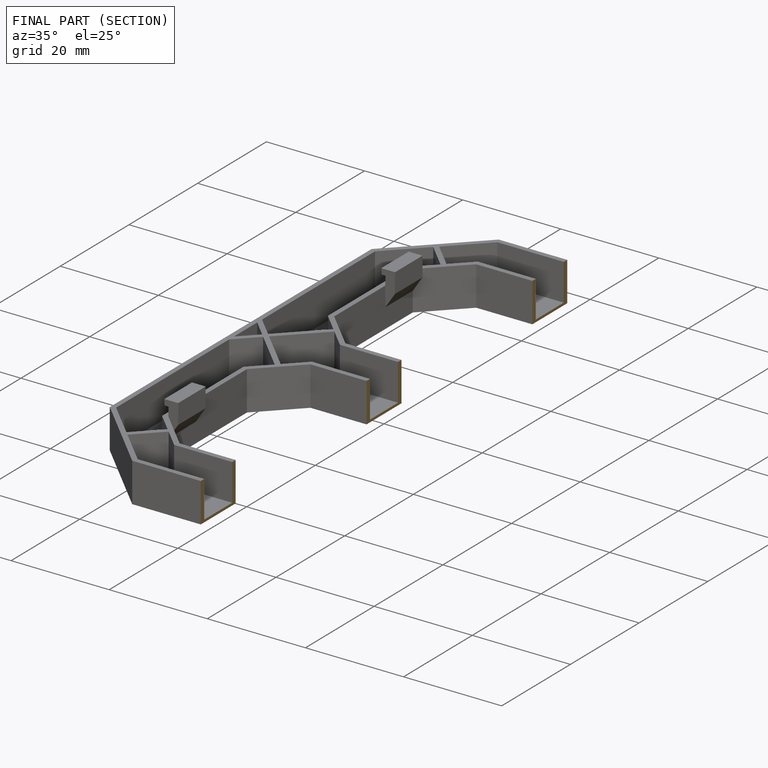
[diagram: finished part — half-section view (interior)]
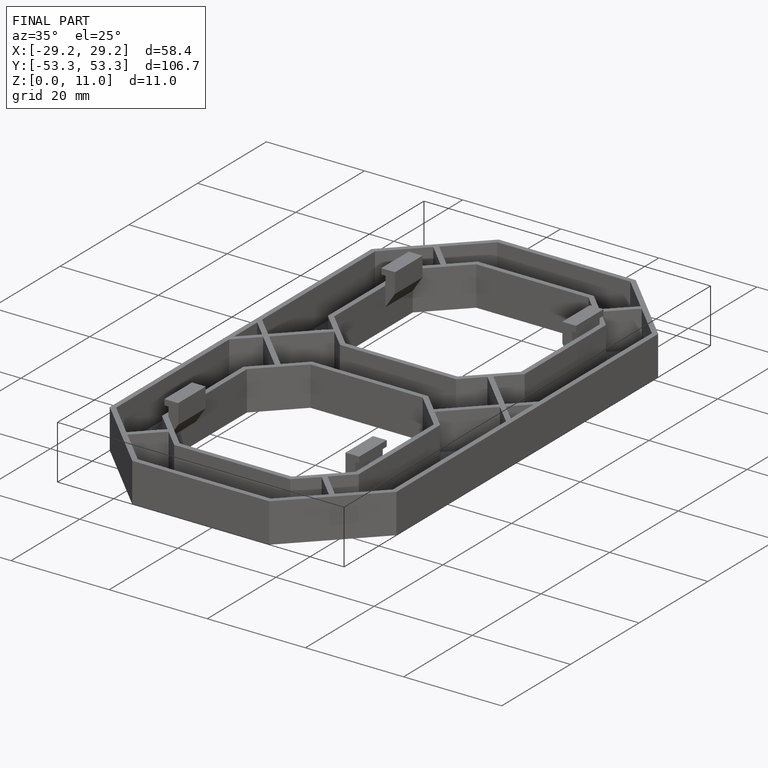
[diagram: finished part — iso view with bounding-box wireframe]
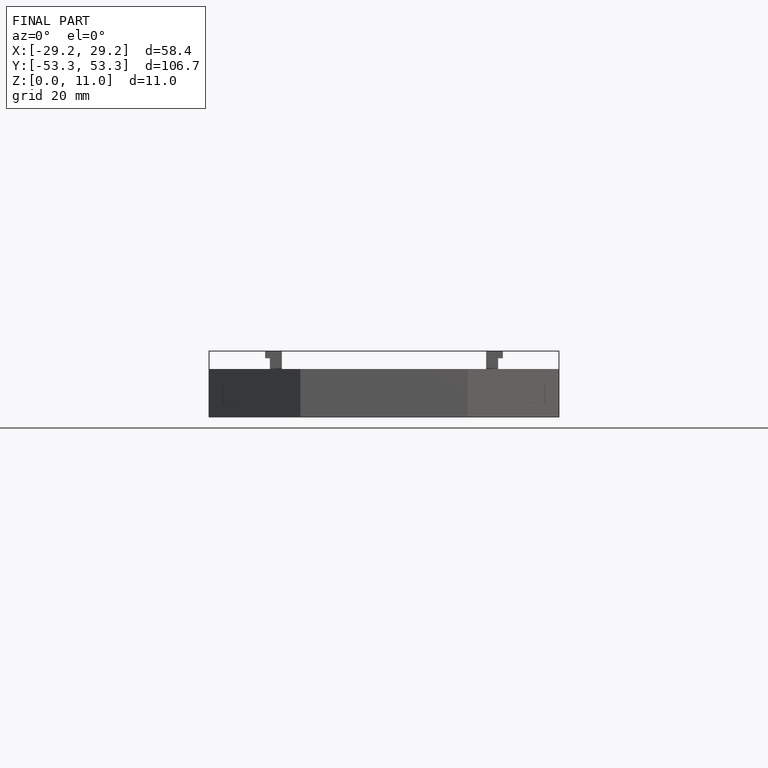
[diagram: finished part — front view with bounding-box wireframe]
